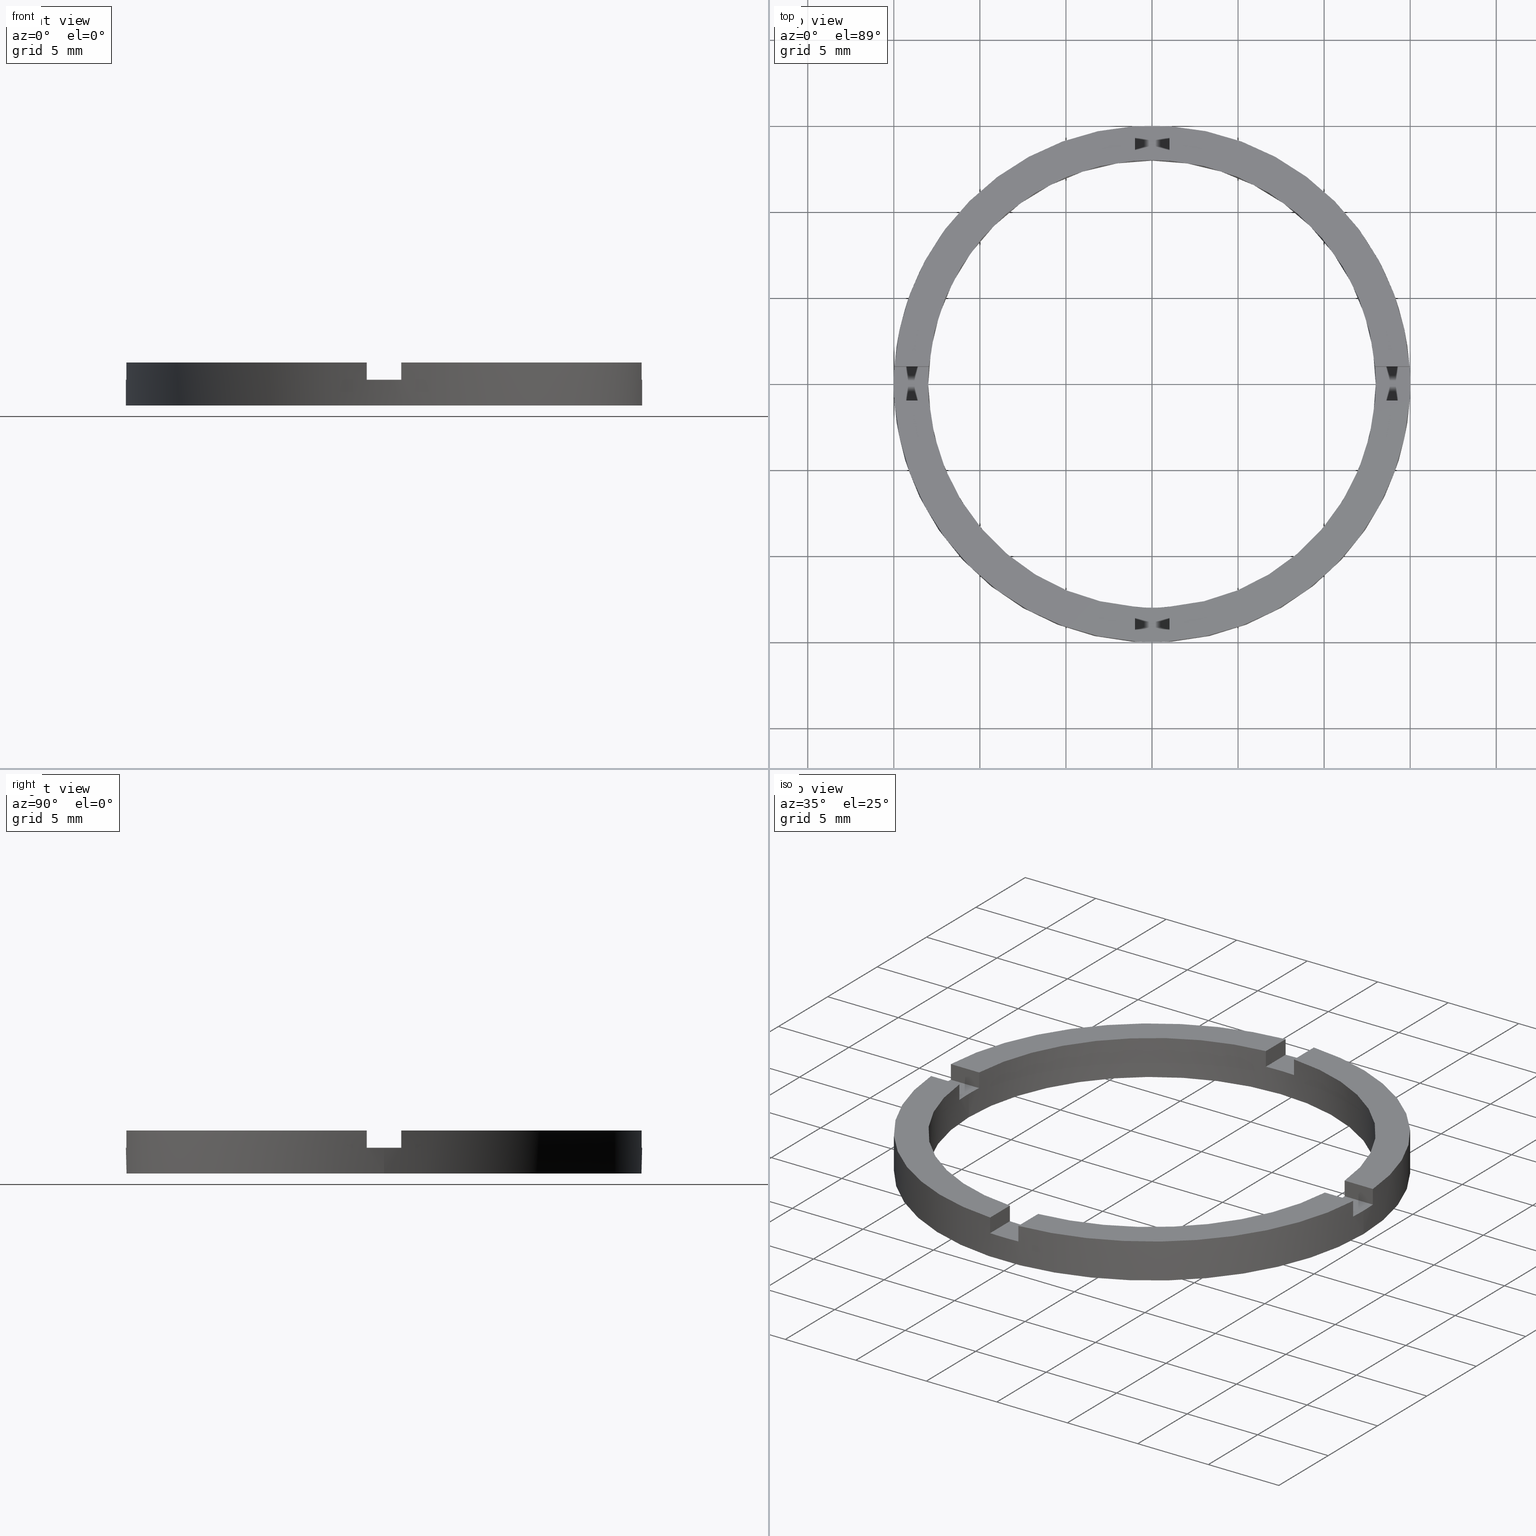
[diagram: canonical four-view strip — front | top / right | iso, engineering-drawing reading convention]
A machine part, canonical four-view strip (front | top / right | iso — engineering-drawing reading convention). The complete STEP part file that produces these views, byte-faithful:
ISO-10303-21;
HEADER;
FILE_DESCRIPTION (( 'STEP AP203' ),
    '1' );
FILE_NAME ('514067.step',
    '2024-12-26T02:34:25',
    ( 'MSI' ),
    ( '' ),
    'SwSTEP 2.0',
    'SolidWorks 2020',
    '' );
FILE_SCHEMA (( 'CONFIG_CONTROL_DESIGN' ));
ENDSEC;

DATA;
#1 = CARTESIAN_POINT ( 'NONE',  ( 0.000000000000000000, 0.000000000000000000, 2.500000000000000000 ) ) ;
#2 = VECTOR ( 'NONE', #232, 1000.000000000000000 ) ;
#3 = APPROVAL ( #459, 'δָ��' ) ;
#4 = EDGE_CURVE ( 'NONE', #371, #401, #487, .T. ) ;
#5 = APPROVAL_ROLE ( '' ) ;
#6 = EDGE_CURVE ( 'NONE', #620, #517, #241, .T. ) ;
#7 = CIRCLE ( 'NONE', #59, 13.00000000000000178 ) ;
#8 = CIRCLE ( 'NONE', #581, 15.00000000000000000 ) ;
#9 = DIRECTION ( 'NONE',  ( 1.000000000000000000, 0.000000000000000000, 0.000000000000000000 ) ) ;
#10 = DIRECTION ( 'NONE',  ( 0.000000000000000000, 0.000000000000000000, 1.000000000000000000 ) ) ;
#11 = ADVANCED_FACE ( 'NONE', ( #737 ), #751, .F. ) ;
#12 = EDGE_CURVE ( 'NONE', #454, #140, #8, .T. ) ;
#13 = FACE_OUTER_BOUND ( 'NONE', #360, .T. ) ;
#14 = LINE ( 'NONE', #101, #17 ) ;
#15 = CARTESIAN_POINT ( 'NONE',  ( 0.000000000000000000, 0.000000000000000000, 0.000000000000000000 ) ) ;
#16 = CARTESIAN_POINT ( 'NONE',  ( -14.96662954709576354, -1.000000000000023093, 1.500000000000000000 ) ) ;
#17 = VECTOR ( 'NONE', #195, 1000.000000000000000 ) ;
#18 = CARTESIAN_POINT ( 'NONE',  ( -12.96148139681571898, -1.000000000000022649, 2.500000000000000000 ) ) ;
#19 = PERSON_AND_ORGANIZATION_ROLE ( 'creator' ) ;
#20 = FACE_OUTER_BOUND ( 'NONE', #750, .T. ) ;
#21 = PLANE ( 'NONE',  #226 ) ;
#22 = CARTESIAN_POINT ( 'NONE',  ( 0.000000000000000000, 0.000000000000000000, 1.500000000000000000 ) ) ;
#23 = EDGE_CURVE ( 'NONE', #80, #675, #542, .T. ) ;
#24 = DIRECTION ( 'NONE',  ( 0.000000000000000000, 1.000000000000000000, 0.000000000000000000 ) ) ;
#25 = CARTESIAN_POINT ( 'NONE',  ( 0.000000000000000000, 0.000000000000000000, 1.500000000000000000 ) ) ;
#26 = CARTESIAN_POINT ( 'NONE',  ( -12.96148139681572253, 0.9999999999999774625, 2.500000000000000000 ) ) ;
#27 = DIRECTION ( 'NONE',  ( 1.000000000000000000, 0.000000000000000000, -0.000000000000000000 ) ) ;
#28 = DIRECTION ( 'NONE',  ( 1.000000000000000000, 0.000000000000000000, 0.000000000000000000 ) ) ;
#29 = CARTESIAN_POINT ( 'NONE',  ( -5.000000000000184741, -1.000000000000021316, 1.500000000000000000 ) ) ;
#30 = DIRECTION ( 'NONE',  ( 1.000000000000000000, 0.000000000000000000, 0.000000000000000000 ) ) ;
#31 = EDGE_CURVE ( 'NONE', #143, #503, #14, .T. ) ;
#32 = CARTESIAN_POINT ( 'NONE',  ( 0.000000000000000000, 0.000000000000000000, 1.500000000000000000 ) ) ;
#33 = CARTESIAN_POINT ( 'NONE',  ( -1.000000000000162981, -14.96662954709575466, 2.500000000000000000 ) ) ;
#34 = CC_DESIGN_DATE_AND_TIME_ASSIGNMENT ( #285, #258, ( #316 ) ) ;
#35 = EDGE_CURVE ( 'NONE', #427, #346, #7, .T. ) ;
#36 = CARTESIAN_POINT ( 'NONE',  ( -1.000000000000024869, 14.96662954709576354, 1.500000000000000000 ) ) ;
#37 = DIRECTION ( 'NONE',  ( 1.000000000000000000, 0.000000000000000000, 0.000000000000000000 ) ) ;
#38 = CARTESIAN_POINT ( 'NONE',  ( 0.000000000000000000, 0.000000000000000000, 2.500000000000000000 ) ) ;
#39 = PERSON_AND_ORGANIZATION ( #479, #654 ) ;
#40 = AXIS2_PLACEMENT_3D ( 'NONE', #75, #601, #269 ) ;
#41 = DATE_AND_TIME ( #564, #272 ) ;
#42 = CALENDAR_DATE ( 2024, 26, 12 ) ;
#43 = DIRECTION ( 'NONE',  ( 0.000000000000000000, 0.000000000000000000, 1.000000000000000000 ) ) ;
#44 = PRODUCT ( '514067', '514067', '', ( #225 ) ) ;
#45 = DIRECTION ( 'NONE',  ( -0.000000000000000000, -0.000000000000000000, -1.000000000000000000 ) ) ;
#46 = PERSON_AND_ORGANIZATION ( #479, #654 ) ;
#47 = LOCAL_TIME ( 10, 34, 25.00000000000000000, #579 ) ;
#48 = APPROVAL_DATE_TIME ( #575, #569 ) ;
#49 = DATE_AND_TIME ( #290, #295 ) ;
#50 = CARTESIAN_POINT ( 'NONE',  ( 0.000000000000000000, 0.000000000000000000, 1.500000000000000000 ) ) ;
#51 = ADVANCED_FACE ( 'NONE', ( #265 ), #278, .F. ) ;
#52 = CARTESIAN_POINT ( 'NONE',  ( -1.000000000000024869, 4.999999999999999112, 2.500000000000000000 ) ) ;
#53 = CARTESIAN_POINT ( 'NONE',  ( -12.96148139681572253, 0.9999999999999774625, 1.500000000000000000 ) ) ;
#54 = CARTESIAN_POINT ( 'NONE',  ( -14.96662954709576709, 0.9999999999999770184, 2.500000000000000000 ) ) ;
#55 = ADVANCED_FACE ( 'NONE', ( #13 ), #540, .F. ) ;
#56 = CARTESIAN_POINT ( 'NONE',  ( 0.000000000000000000, 0.000000000000000000, 1.500000000000000000 ) ) ;
#57 = DIRECTION ( 'NONE',  ( 1.000000000000000000, 0.000000000000000000, -0.000000000000000000 ) ) ;
#58 = CARTESIAN_POINT ( 'NONE',  ( -12.96148139681572253, 0.9999999999999774625, 2.500000000000000000 ) ) ;
#59 = AXIS2_PLACEMENT_3D ( 'NONE', #339, #284, #329 ) ;
#60 = CARTESIAN_POINT ( 'NONE',  ( 14.96662954709577775, 0.9999999999998406830, 1.500000000000000000 ) ) ;
#61 = APPROVAL_STATUS ( 'not_yet_approved' ) ;
#62 = ADVANCED_FACE ( 'NONE', ( #20 ), #635, .T. ) ;
#63 = DIRECTION ( 'NONE',  ( 0.000000000000000000, 0.000000000000000000, 1.000000000000000000 ) ) ;
#64 = AXIS2_PLACEMENT_3D ( 'NONE', #22, #493, #559 ) ;
#65 = PLANE ( 'NONE',  #631 ) ;
#66 = EDGE_CURVE ( 'NONE', #374, #244, #266, .T. ) ;
#67 = DIRECTION ( 'NONE',  ( -1.000000000000000000, -1.734723475976807094E-16, 0.000000000000000000 ) ) ;
#68 =( NAMED_UNIT ( * ) PLANE_ANGLE_UNIT ( ) SI_UNIT ( $, .RADIAN. ) );
#69 = DIRECTION ( 'NONE',  ( -0.000000000000000000, -0.000000000000000000, -1.000000000000000000 ) ) ;
#70 = DIRECTION ( 'NONE',  ( 1.000000000000000000, 1.734723475976807094E-16, 0.000000000000000000 ) ) ;
#71 = APPLICATION_CONTEXT ( 'configuration controlled 3d designs of mechanical parts and assemblies' ) ;
#72 = EDGE_CURVE ( 'NONE', #448, #346, #261, .T. ) ;
#73 = CARTESIAN_POINT ( 'NONE',  ( 0.000000000000000000, 0.000000000000000000, 1.500000000000000000 ) ) ;
#74 = EDGE_CURVE ( 'NONE', #351, #156, #695, .T. ) ;
#75 = CARTESIAN_POINT ( 'NONE',  ( 0.000000000000000000, 0.000000000000000000, 2.500000000000000000 ) ) ;
#76 = DIRECTION ( 'NONE',  ( -0.000000000000000000, 0.000000000000000000, 1.000000000000000000 ) ) ;
#77 = CARTESIAN_POINT ( 'NONE',  ( -1.000000000000162981, -14.96662954709575466, 2.500000000000000000 ) ) ;
#78 = CLOSED_SHELL ( 'NONE', ( #557, #747, #428, #200, #251, #205, #653, #592, #443, #336, #299, #600, #668, #55, #355, #516, #245, #521, #51, #11, #62 ) ) ;
#79 = DIRECTION ( 'NONE',  ( 0.000000000000000000, 0.000000000000000000, 1.000000000000000000 ) ) ;
#80 = VERTEX_POINT ( 'NONE', #781 ) ;
#81 = CC_DESIGN_DATE_AND_TIME_ASSIGNMENT ( #49, #305, ( #756 ) ) ;
#82 = EDGE_CURVE ( 'NONE', #765, #432, #386, .T. ) ;
#83 = ORIENTED_EDGE ( 'NONE', *, *, #286, .F. ) ;
#84 = EDGE_CURVE ( 'NONE', #94, #507, #414, .T. ) ;
#85 = ORIENTED_EDGE ( 'NONE', *, *, #608, .F. ) ;
#86 = ORIENTED_EDGE ( 'NONE', *, *, #541, .T. ) ;
#87 = DIRECTION ( 'NONE',  ( -1.000000000000000000, 0.000000000000000000, 0.000000000000000000 ) ) ;
#88 = DIRECTION ( 'NONE',  ( -0.000000000000000000, -0.000000000000000000, -1.000000000000000000 ) ) ;
#89 = EDGE_LOOP ( 'NONE', ( #238, #768, #605, #338, #518, #672 ) ) ;
#90 = ORIENTED_EDGE ( 'NONE', *, *, #194, .F. ) ;
#91 = ORIENTED_EDGE ( 'NONE', *, *, #31, .T. ) ;
#92 = AXIS2_PLACEMENT_3D ( 'NONE', #452, #524, #247 ) ;
#93 = PERSON_AND_ORGANIZATION_ROLE ( 'design_owner' ) ;
#94 = VERTEX_POINT ( 'NONE', #774 ) ;
#95 = DIRECTION ( 'NONE',  ( -1.000000000000000000, 0.000000000000000000, 0.000000000000000000 ) ) ;
#96 = VECTOR ( 'NONE', #746, 1000.000000000000000 ) ;
#97 = ORIENTED_EDGE ( 'NONE', *, *, #6, .T. ) ;
#98 = ORIENTED_EDGE ( 'NONE', *, *, #31, .F. ) ;
#99 = AXIS2_PLACEMENT_3D ( 'NONE', #550, #648, #287 ) ;
#100 = VERTEX_POINT ( 'NONE', #33 ) ;
#101 = CARTESIAN_POINT ( 'NONE',  ( 4.999999999999993783, -1.000000000000159872, 2.500000000000000000 ) ) ;
#102 = ORIENTED_EDGE ( 'NONE', *, *, #191, .F. ) ;
#103 = ORIENTED_EDGE ( 'NONE', *, *, #570, .F. ) ;
#104 = ORIENTED_EDGE ( 'NONE', *, *, #632, .F. ) ;
#105 = EDGE_CURVE ( 'NONE', #627, #244, #132, .T. ) ;
#106 = EDGE_LOOP ( 'NONE', ( #703, #164 ) ) ;
#107 = UNCERTAINTY_MEASURE_WITH_UNIT (LENGTH_MEASURE( 1.000000000000000082E-05 ), #701, 'distance_accuracy_value', 'NONE');
#108 = DIRECTION ( 'NONE',  ( -0.000000000000000000, -1.000000000000000000, -0.000000000000000000 ) ) ;
#109 = DIRECTION ( 'NONE',  ( -1.000000000000000000, -4.336808689942017736E-17, 0.000000000000000000 ) ) ;
#110 = ORIENTED_EDGE ( 'NONE', *, *, #276, .T. ) ;
#111 = CARTESIAN_POINT ( 'NONE',  ( 0.9999999999999751310, 14.96662954709576709, 1.500000000000000000 ) ) ;
#112 = DIRECTION ( 'NONE',  ( -0.000000000000000000, -0.000000000000000000, -1.000000000000000000 ) ) ;
#113 = VERTEX_POINT ( 'NONE', #704 ) ;
#114 = ORIENTED_EDGE ( 'NONE', *, *, #423, .T. ) ;
#115 = FACE_OUTER_BOUND ( 'NONE', #696, .T. ) ;
#116 = VECTOR ( 'NONE', #311, 1000.000000000000000 ) ;
#117 = EDGE_CURVE ( 'NONE', #371, #690, #391, .T. ) ;
#118 = VECTOR ( 'NONE', #603, 1000.000000000000000 ) ;
#119 = DIRECTION ( 'NONE',  ( 1.000000000000000000, 0.000000000000000000, -0.000000000000000000 ) ) ;
#120 = CARTESIAN_POINT ( 'NONE',  ( 0.9999999999998366862, -12.96148139681573497, 2.500000000000000000 ) ) ;
#121 = AXIS2_PLACEMENT_3D ( 'NONE', #596, #552, #199 ) ;
#122 = LINE ( 'NONE', #545, #649 ) ;
#123 = FACE_OUTER_BOUND ( 'NONE', #136, .T. ) ;
#124 = CARTESIAN_POINT ( 'NONE',  ( -14.96662954709576709, 0.9999999999999770184, 1.500000000000000000 ) ) ;
#125 = CC_DESIGN_APPROVAL ( #3, ( #527 ) ) ;
#126 = EDGE_CURVE ( 'NONE', #627, #186, #135, .T. ) ;
#127 = CARTESIAN_POINT ( 'NONE',  ( 15.00000000000000000, 1.836970198721029589E-15, 1.500000000000000000 ) ) ;
#128 = EDGE_CURVE ( 'NONE', #80, #331, #671, .T. ) ;
#129 = APPROVAL_STATUS ( 'not_yet_approved' ) ;
#130 = CYLINDRICAL_SURFACE ( 'NONE', #577, 15.00000000000000000 ) ;
#131 = LINE ( 'NONE', #367, #118 ) ;
#132 = CIRCLE ( 'NONE', #40, 15.00000000000000000 ) ;
#133 = ORIENTED_EDGE ( 'NONE', *, *, #191, .T. ) ;
#134 = CALENDAR_DATE ( 2024, 26, 12 ) ;
#135 = LINE ( 'NONE', #686, #680 ) ;
#136 = EDGE_LOOP ( 'NONE', ( #757, #138, #664, #502 ) ) ;
#137 = CIRCLE ( 'NONE', #484, 13.00000000000000178 ) ;
#138 = ORIENTED_EDGE ( 'NONE', *, *, #602, .T. ) ;
#139 = LOCAL_TIME ( 10, 34, 25.00000000000000000, #398 ) ;
#140 = VERTEX_POINT ( 'NONE', #127 ) ;
#141 = PLANE ( 'NONE',  #624 ) ;
#142 = APPLICATION_PROTOCOL_DEFINITION ( 'international standard', 'config_control_design', 1994, #71 ) ;
#143 = VERTEX_POINT ( 'NONE', #216 ) ;
#144 = AXIS2_PLACEMENT_3D ( 'NONE', #196, #745, #303 ) ;
#145 = LOCAL_TIME ( 10, 34, 25.00000000000000000, #394 ) ;
#146 = ORIENTED_EDGE ( 'NONE', *, *, #504, .F. ) ;
#147 = LINE ( 'NONE', #18, #396 ) ;
#148 = ORIENTED_EDGE ( 'NONE', *, *, #248, .F. ) ;
#149 = VECTOR ( 'NONE', #45, 1000.000000000000000 ) ;
#150 = EDGE_LOOP ( 'NONE', ( #353, #219, #613, #426 ) ) ;
#151 = ORIENTED_EDGE ( 'NONE', *, *, #563, .T. ) ;
#152 = VECTOR ( 'NONE', #218, 1000.000000000000000 ) ;
#153 = VECTOR ( 'NONE', #741, 1000.000000000000000 ) ;
#154 = VECTOR ( 'NONE', #533, 1000.000000000000000 ) ;
#155 = ORIENTED_EDGE ( 'NONE', *, *, #220, .F. ) ;
#156 = VERTEX_POINT ( 'NONE', #317 ) ;
#157 = DIRECTION ( 'NONE',  ( 0.000000000000000000, 0.000000000000000000, 1.000000000000000000 ) ) ;
#158 = FACE_OUTER_BOUND ( 'NONE', #742, .T. ) ;
#159 = ORIENTED_EDGE ( 'NONE', *, *, #644, .T. ) ;
#160 = ORIENTED_EDGE ( 'NONE', *, *, #423, .F. ) ;
#161 = DIRECTION ( 'NONE',  ( 1.000000000000000000, 0.000000000000000000, -0.000000000000000000 ) ) ;
#162 = FACE_OUTER_BOUND ( 'NONE', #716, .T. ) ;
#163 = VERTEX_POINT ( 'NONE', #480 ) ;
#164 = ORIENTED_EDGE ( 'NONE', *, *, #74, .F. ) ;
#165 = VECTOR ( 'NONE', #586, 1000.000000000000000 ) ;
#166 = ORIENTED_EDGE ( 'NONE', *, *, #4, .T. ) ;
#167 = LINE ( 'NONE', #291, #435 ) ;
#168 = FACE_OUTER_BOUND ( 'NONE', #150, .T. ) ;
#169 = ORIENTED_EDGE ( 'NONE', *, *, #23, .F. ) ;
#170 = FACE_OUTER_BOUND ( 'NONE', #368, .T. ) ;
#171 = ORIENTED_EDGE ( 'NONE', *, *, #84, .F. ) ;
#172 = DIRECTION ( 'NONE',  ( 1.000000000000000000, 1.734723475976807094E-16, -0.000000000000000000 ) ) ;
#173 = EDGE_CURVE ( 'NONE', #113, #636, #147, .T. ) ;
#174 = ORIENTED_EDGE ( 'NONE', *, *, #651, .T. ) ;
#175 = CIRCLE ( 'NONE', #597, 15.00000000000000000 ) ;
#176 = EDGE_LOOP ( 'NONE', ( #169, #639, #655, #155 ) ) ;
#177 = ORIENTED_EDGE ( 'NONE', *, *, #173, .F. ) ;
#178 = AXIS2_PLACEMENT_3D ( 'NONE', #387, #76, #279 ) ;
#179 = FACE_OUTER_BOUND ( 'NONE', #513, .T. ) ;
#180 = ORIENTED_EDGE ( 'NONE', *, *, #105, .F. ) ;
#181 = ORIENTED_EDGE ( 'NONE', *, *, #464, .T. ) ;
#182 = VECTOR ( 'NONE', #88, 1000.000000000000000 ) ;
#183 = ORIENTED_EDGE ( 'NONE', *, *, #286, .T. ) ;
#184 = CIRCLE ( 'NONE', #92, 13.00000000000000178 ) ;
#185 = FACE_OUTER_BOUND ( 'NONE', #335, .T. ) ;
#186 = VERTEX_POINT ( 'NONE', #60 ) ;
#187 = AXIS2_PLACEMENT_3D ( 'NONE', #350, #292, #87 ) ;
#188 = FACE_OUTER_BOUND ( 'NONE', #223, .T. ) ;
#189 = CIRCLE ( 'NONE', #312, 13.00000000000000178 ) ;
#190 = CARTESIAN_POINT ( 'NONE',  ( 0.9999999999998369082, -14.96662954709577775, 1.500000000000000000 ) ) ;
#191 = EDGE_CURVE ( 'NONE', #675, #401, #410, .T. ) ;
#192 = CIRCLE ( 'NONE', #64, 13.00000000000000178 ) ;
#193 = LINE ( 'NONE', #483, #468 ) ;
#194 = EDGE_CURVE ( 'NONE', #389, #610, #684, .T. ) ;
#195 = DIRECTION ( 'NONE',  ( 1.000000000000000000, 4.336808689942017736E-17, 0.000000000000000000 ) ) ;
#196 = CARTESIAN_POINT ( 'NONE',  ( 0.000000000000000000, 0.000000000000000000, 2.500000000000000000 ) ) ;
#197 = DIRECTION ( 'NONE',  ( 1.000000000000000000, 1.734723475976807094E-16, -0.000000000000000000 ) ) ;
#198 = VECTOR ( 'NONE', #235, 1000.000000000000000 ) ;
#199 = DIRECTION ( 'NONE',  ( 1.000000000000000000, 0.000000000000000000, 0.000000000000000000 ) ) ;
#200 = ADVANCED_FACE ( 'NONE', ( #158 ), #560, .T. ) ;
#201 = LINE ( 'NONE', #568, #461 ) ;
#202 = CYLINDRICAL_SURFACE ( 'NONE', #187, 15.00000000000000000 ) ;
#203 = DIRECTION ( 'NONE',  ( 0.000000000000000000, 0.000000000000000000, 1.000000000000000000 ) ) ;
#204 = APPLICATION_CONTEXT ( 'configuration controlled 3d designs of mechanical parts and assemblies' ) ;
#205 = ADVANCED_FACE ( 'NONE', ( #425 ), #528, .T. ) ;
#206 = VECTOR ( 'NONE', #69, 1000.000000000000000 ) ;
#207 = CARTESIAN_POINT ( 'NONE',  ( 4.999999999999993783, 0.9999999999998402389, 2.500000000000000000 ) ) ;
#208 = CARTESIAN_POINT ( 'NONE',  ( -1.000000000000164313, -5.000000000000179412, 2.500000000000000000 ) ) ;
#209 = FACE_OUTER_BOUND ( 'NONE', #176, .T. ) ;
#210 = VECTOR ( 'NONE', #294, 1000.000000000000000 ) ;
#211 = SECURITY_CLASSIFICATION_LEVEL ( 'unclassified' ) ;
#212 = EDGE_CURVE ( 'NONE', #94, #156, #692, .T. ) ;
#213 = VECTOR ( 'NONE', #112, 1000.000000000000000 ) ;
#214 = DIRECTION ( 'NONE',  ( -1.000000000000000000, -4.336808689942017736E-17, -0.000000000000000000 ) ) ;
#215 = CIRCLE ( 'NONE', #121, 15.00000000000000000 ) ;
#216 = CARTESIAN_POINT ( 'NONE',  ( 12.96148139681570832, -1.000000000000159428, 2.500000000000000000 ) ) ;
#217 = DIRECTION ( 'NONE',  ( -0.000000000000000000, -0.000000000000000000, -1.000000000000000000 ) ) ;
#218 = DIRECTION ( 'NONE',  ( 0.000000000000000000, 0.000000000000000000, 1.000000000000000000 ) ) ;
#219 = ORIENTED_EDGE ( 'NONE', *, *, #498, .T. ) ;
#220 = EDGE_CURVE ( 'NONE', #675, #748, #189, .T. ) ;
#221 = DIRECTION ( 'NONE',  ( -0.000000000000000000, -0.000000000000000000, -1.000000000000000000 ) ) ;
#222 = ORIENTED_EDGE ( 'NONE', *, *, #602, .F. ) ;
#223 = EDGE_LOOP ( 'NONE', ( #708, #446, #660, #712, #151, #177, #417, #90, #437, #222, #174, #148 ) ) ;
#224 = ORIENTED_EDGE ( 'NONE', *, *, #35, .T. ) ;
#225 = MECHANICAL_CONTEXT ( 'NONE', #71, 'mechanical' ) ;
#226 = AXIS2_PLACEMENT_3D ( 'NONE', #376, #598, #67 ) ;
#227 = ORIENTED_EDGE ( 'NONE', *, *, #117, .T. ) ;
#228 =( GEOMETRIC_REPRESENTATION_CONTEXT ( 3 ) GLOBAL_UNCERTAINTY_ASSIGNED_CONTEXT ( ( #107 ) ) GLOBAL_UNIT_ASSIGNED_CONTEXT ( ( #701, #68, #617 ) ) REPRESENTATION_CONTEXT ( 'NONE', 'WORKASPACE' ) );
#229 = ORIENTED_EDGE ( 'NONE', *, *, #584, .F. ) ;
#230 = DIRECTION ( 'NONE',  ( 4.336808689942017736E-17, -1.000000000000000000, 0.000000000000000000 ) ) ;
#231 = ORIENTED_EDGE ( 'NONE', *, *, #485, .T. ) ;
#232 = DIRECTION ( 'NONE',  ( 0.000000000000000000, 1.000000000000000000, 0.000000000000000000 ) ) ;
#233 = ORIENTED_EDGE ( 'NONE', *, *, #308, .F. ) ;
#234 = ORIENTED_EDGE ( 'NONE', *, *, #212, .F. ) ;
#235 = DIRECTION ( 'NONE',  ( 1.000000000000000000, 4.336808689942017736E-17, 0.000000000000000000 ) ) ;
#236 = ORIENTED_EDGE ( 'NONE', *, *, #72, .F. ) ;
#237 = CARTESIAN_POINT ( 'NONE',  ( 4.999999999999993783, -1.000000000000159872, 1.500000000000000000 ) ) ;
#238 = ORIENTED_EDGE ( 'NONE', *, *, #12, .T. ) ;
#239 = ORIENTED_EDGE ( 'NONE', *, *, #325, .T. ) ;
#240 = ORIENTED_EDGE ( 'NONE', *, *, #270, .T. ) ;
#241 = CIRCLE ( 'NONE', #319, 15.00000000000000000 ) ;
#242 = ORIENTED_EDGE ( 'NONE', *, *, #309, .F. ) ;
#243 = DIRECTION ( 'NONE',  ( -0.000000000000000000, -0.000000000000000000, -1.000000000000000000 ) ) ;
#244 = VERTEX_POINT ( 'NONE', #634 ) ;
#245 = ADVANCED_FACE ( 'NONE', ( #179 ), #773, .F. ) ;
#246 = CC_DESIGN_PERSON_AND_ORGANIZATION_ASSIGNMENT ( #551, #289, ( #527 ) ) ;
#247 = DIRECTION ( 'NONE',  ( 1.000000000000000000, 0.000000000000000000, 0.000000000000000000 ) ) ;
#248 = EDGE_CURVE ( 'NONE', #163, #143, #707, .T. ) ;
#249 = CARTESIAN_POINT ( 'NONE',  ( 0.000000000000000000, 0.000000000000000000, 1.500000000000000000 ) ) ;
#250 = EDGE_CURVE ( 'NONE', #640, #94, #723, .T. ) ;
#251 = ADVANCED_FACE ( 'NONE', ( #185 ), #388, .T. ) ;
#252 = PLANE ( 'NONE',  #588 ) ;
#253 = CARTESIAN_POINT ( 'NONE',  ( 0.000000000000000000, 0.000000000000000000, 1.500000000000000000 ) ) ;
#254 = DIRECTION ( 'NONE',  ( 1.000000000000000000, 0.000000000000000000, 0.000000000000000000 ) ) ;
#255 = PLANE ( 'NONE',  #293 ) ;
#256 = DIRECTION ( 'NONE',  ( 0.000000000000000000, 0.000000000000000000, 1.000000000000000000 ) ) ;
#257 = DIRECTION ( 'NONE',  ( 0.000000000000000000, 0.000000000000000000, 1.000000000000000000 ) ) ;
#258 = DATE_TIME_ROLE ( 'creation_date' ) ;
#259 = AXIS2_PLACEMENT_3D ( 'NONE', #281, #384, #412 ) ;
#260 = CARTESIAN_POINT ( 'NONE',  ( 13.00000000000000178, 1.592040838891559293E-15, 2.500000000000000000 ) ) ;
#261 = LINE ( 'NONE', #779, #149 ) ;
#262 = CARTESIAN_POINT ( 'NONE',  ( 0.000000000000000000, 0.000000000000000000, 1.500000000000000000 ) ) ;
#263 = VECTOR ( 'NONE', #108, 1000.000000000000000 ) ;
#264 = CARTESIAN_POINT ( 'NONE',  ( 0.000000000000000000, 0.000000000000000000, 2.500000000000000000 ) ) ;
#265 = FACE_OUTER_BOUND ( 'NONE', #744, .T. ) ;
#266 = LINE ( 'NONE', #583, #2 ) ;
#267 = CARTESIAN_POINT ( 'NONE',  ( 0.000000000000000000, 0.000000000000000000, 1.500000000000000000 ) ) ;
#268 = CARTESIAN_POINT ( 'NONE',  ( -13.00000000000000178, 0.000000000000000000, 0.000000000000000000 ) ) ;
#269 = DIRECTION ( 'NONE',  ( 1.000000000000000000, 0.000000000000000000, 0.000000000000000000 ) ) ;
#270 = EDGE_CURVE ( 'NONE', #517, #506, #718, .T. ) ;
#271 = PRODUCT_RELATED_PRODUCT_CATEGORY ( 'detail', '', ( #44 ) ) ;
#272 = LOCAL_TIME ( 10, 34, 25.00000000000000000, #548 ) ;
#273 = DIRECTION ( 'NONE',  ( 0.000000000000000000, 0.000000000000000000, 1.000000000000000000 ) ) ;
#274 = APPROVAL_DATE_TIME ( #41, #3 ) ;
#275 = CC_DESIGN_PERSON_AND_ORGANIZATION_ASSIGNMENT ( #300, #607, ( #527 ) ) ;
#276 = EDGE_CURVE ( 'NONE', #620, #100, #447, .T. ) ;
#277 = DIRECTION ( 'NONE',  ( 1.000000000000000000, 4.336808689942017736E-17, 0.000000000000000000 ) ) ;
#278 = PLANE ( 'NONE',  #259 ) ;
#279 = DIRECTION ( 'NONE',  ( 1.000000000000000000, 0.000000000000000000, 0.000000000000000000 ) ) ;
#280 = AXIS2_PLACEMENT_3D ( 'NONE', #237, #230, #277 ) ;
#281 = CARTESIAN_POINT ( 'NONE',  ( -1.000000000000024869, 4.999999999999999112, 1.500000000000000000 ) ) ;
#282 = DIRECTION ( 'NONE',  ( -0.000000000000000000, -0.000000000000000000, -1.000000000000000000 ) ) ;
#283 = AXIS2_PLACEMENT_3D ( 'NONE', #327, #63, #431 ) ;
#284 = DIRECTION ( 'NONE',  ( 0.000000000000000000, 0.000000000000000000, 1.000000000000000000 ) ) ;
#285 = DATE_AND_TIME ( #562, #139 ) ;
#286 = EDGE_CURVE ( 'NONE', #690, #244, #193, .T. ) ;
#287 = DIRECTION ( 'NONE',  ( 0.000000000000000000, 0.000000000000000000, -1.000000000000000000 ) ) ;
#288 = PLANE ( 'NONE',  #783 ) ;
#289 = PERSON_AND_ORGANIZATION_ROLE ( 'creator' ) ;
#290 = CALENDAR_DATE ( 2024, 26, 12 ) ;
#291 = CARTESIAN_POINT ( 'NONE',  ( -1.000000000000024869, 4.999999999999999112, 1.500000000000000000 ) ) ;
#292 = DIRECTION ( 'NONE',  ( -0.000000000000000000, -0.000000000000000000, -1.000000000000000000 ) ) ;
#293 = AXIS2_PLACEMENT_3D ( 'NONE', #29, #558, #70 ) ;
#294 = DIRECTION ( 'NONE',  ( 0.000000000000000000, 0.000000000000000000, 1.000000000000000000 ) ) ;
#295 = LOCAL_TIME ( 10, 34, 25.00000000000000000, #296 ) ;
#296 = COORDINATED_UNIVERSAL_TIME_OFFSET ( 8, 0, .AHEAD. ) ;
#297 = DIRECTION ( 'NONE',  ( 0.000000000000000000, 0.000000000000000000, 1.000000000000000000 ) ) ;
#298 = EDGE_CURVE ( 'NONE', #163, #454, #460, .T. ) ;
#299 = ADVANCED_FACE ( 'NONE', ( #168 ), #21, .F. ) ;
#300 = PERSON_AND_ORGANIZATION ( #479, #654 ) ;
#301 = PERSON_AND_ORGANIZATION ( #479, #654 ) ;
#302 = AXIS2_PLACEMENT_3D ( 'NONE', #249, #344, #514 ) ;
#303 = DIRECTION ( 'NONE',  ( -1.000000000000000000, 0.000000000000000000, 0.000000000000000000 ) ) ;
#304 = DIRECTION ( 'NONE',  ( 1.000000000000000000, 0.000000000000000000, 0.000000000000000000 ) ) ;
#305 = DATE_TIME_ROLE ( 'classification_date' ) ;
#306 = CARTESIAN_POINT ( 'NONE',  ( 0.000000000000000000, 0.000000000000000000, 1.500000000000000000 ) ) ;
#307 = AXIS2_PLACEMENT_3D ( 'NONE', #760, #512, #595 ) ;
#308 = EDGE_CURVE ( 'NONE', #427, #432, #466, .T. ) ;
#309 = EDGE_CURVE ( 'NONE', #627, #448, #720, .T. ) ;
#310 = DIRECTION ( 'NONE',  ( -0.000000000000000000, 0.000000000000000000, 1.000000000000000000 ) ) ;
#311 = DIRECTION ( 'NONE',  ( -0.000000000000000000, -0.000000000000000000, -1.000000000000000000 ) ) ;
#312 = AXIS2_PLACEMENT_3D ( 'NONE', #38, #79, #539 ) ;
#313 = SHAPE_DEFINITION_REPRESENTATION ( #526, #455 ) ;
#314 = DIRECTION ( 'NONE',  ( -1.000000000000000000, -4.336808689942017736E-17, -0.000000000000000000 ) ) ;
#315 = DESIGN_CONTEXT ( 'detailed design', #204, 'design' ) ;
#316 = PRODUCT_DEFINITION ( 'δ֪', '', #527, #315 ) ;
#317 = CARTESIAN_POINT ( 'NONE',  ( -15.00000000000000000, 0.000000000000000000, 0.000000000000000000 ) ) ;
#318 = CARTESIAN_POINT ( 'NONE',  ( 0.000000000000000000, 0.000000000000000000, 0.000000000000000000 ) ) ;
#319 = AXIS2_PLACEMENT_3D ( 'NONE', #25, #522, #254 ) ;
#320 = DIRECTION ( 'NONE',  ( 0.000000000000000000, 0.000000000000000000, 1.000000000000000000 ) ) ;
#321 = DIRECTION ( 'NONE',  ( 0.000000000000000000, 0.000000000000000000, 1.000000000000000000 ) ) ;
#322 = CARTESIAN_POINT ( 'NONE',  ( 12.96148139681570832, -1.000000000000159428, 2.500000000000000000 ) ) ;
#323 = AXIS2_PLACEMENT_3D ( 'NONE', #772, #372, #366 ) ;
#324 = EDGE_CURVE ( 'NONE', #448, #374, #436, .T. ) ;
#325 = EDGE_CURVE ( 'NONE', #348, #503, #699, .T. ) ;
#326 = DIRECTION ( 'NONE',  ( 1.301042606982605321E-16, -1.000000000000000000, 0.000000000000000000 ) ) ;
#327 = CARTESIAN_POINT ( 'NONE',  ( 0.000000000000000000, 0.000000000000000000, 2.500000000000000000 ) ) ;
#328 = CARTESIAN_POINT ( 'NONE',  ( -1.000000000000024869, 14.96662954709576354, 2.500000000000000000 ) ) ;
#329 = DIRECTION ( 'NONE',  ( 1.000000000000000000, 0.000000000000000000, 0.000000000000000000 ) ) ;
#330 = ORIENTED_EDGE ( 'NONE', *, *, #298, .F. ) ;
#331 = VERTEX_POINT ( 'NONE', #358 ) ;
#332 = DIRECTION ( 'NONE',  ( 0.000000000000000000, 0.000000000000000000, 1.000000000000000000 ) ) ;
#333 = ORIENTED_EDGE ( 'NONE', *, *, #775, .T. ) ;
#334 = DIRECTION ( 'NONE',  ( 0.000000000000000000, 0.000000000000000000, 1.000000000000000000 ) ) ;
#335 = EDGE_LOOP ( 'NONE', ( #98, #763, #104, #239 ) ) ;
#336 = ADVANCED_FACE ( 'NONE', ( #170 ), #255, .F. ) ;
#337 = ORIENTED_EDGE ( 'NONE', *, *, #780, .T. ) ;
#338 = ORIENTED_EDGE ( 'NONE', *, *, #35, .F. ) ;
#339 = CARTESIAN_POINT ( 'NONE',  ( 0.000000000000000000, 0.000000000000000000, 1.500000000000000000 ) ) ;
#340 = ORIENTED_EDGE ( 'NONE', *, *, #593, .F. ) ;
#341 = DIRECTION ( 'NONE',  ( 1.000000000000000000, 0.000000000000000000, 0.000000000000000000 ) ) ;
#342 = CARTESIAN_POINT ( 'NONE',  ( -1.000000000000163203, -12.96148139681570832, 2.500000000000000000 ) ) ;
#343 = ORIENTED_EDGE ( 'NONE', *, *, #529, .F. ) ;
#344 = DIRECTION ( 'NONE',  ( 0.000000000000000000, -0.000000000000000000, 1.000000000000000000 ) ) ;
#345 = PERSON_AND_ORGANIZATION_ROLE ( 'classification_officer' ) ;
#346 = VERTEX_POINT ( 'NONE', #381 ) ;
#347 = VERTEX_POINT ( 'NONE', #451 ) ;
#348 = VERTEX_POINT ( 'NONE', #622 ) ;
#349 = CARTESIAN_POINT ( 'NONE',  ( 4.999999999999993783, 0.9999999999998402389, 1.500000000000000000 ) ) ;
#350 = CARTESIAN_POINT ( 'NONE',  ( 0.000000000000000000, 0.000000000000000000, 2.500000000000000000 ) ) ;
#351 = VERTEX_POINT ( 'NONE', #523 ) ;
#352 = DIRECTION ( 'NONE',  ( 0.000000000000000000, 0.000000000000000000, 1.000000000000000000 ) ) ;
#353 = ORIENTED_EDGE ( 'NONE', *, *, #541, .F. ) ;
#354 = ORIENTED_EDGE ( 'NONE', *, *, #775, .F. ) ;
#355 = ADVANCED_FACE ( 'NONE', ( #439 ), #141, .T. ) ;
#356 = FACE_OUTER_BOUND ( 'NONE', #628, .T. ) ;
#357 = ORIENTED_EDGE ( 'NONE', *, *, #276, .F. ) ;
#358 = CARTESIAN_POINT ( 'NONE',  ( -14.96662954709576709, 0.9999999999999770184, 2.500000000000000000 ) ) ;
#359 = CARTESIAN_POINT ( 'NONE',  ( 0.000000000000000000, 0.000000000000000000, 2.500000000000000000 ) ) ;
#360 = EDGE_LOOP ( 'NONE', ( #354, #392, #442, #357 ) ) ;
#361 = DIRECTION ( 'NONE',  ( -0.000000000000000000, -0.000000000000000000, -1.000000000000000000 ) ) ;
#362 = ORIENTED_EDGE ( 'NONE', *, *, #250, .F. ) ;
#363 = DIRECTION ( 'NONE',  ( 1.000000000000000000, 0.000000000000000000, 0.000000000000000000 ) ) ;
#364 = ORIENTED_EDGE ( 'NONE', *, *, #6, .F. ) ;
#365 = ORIENTED_EDGE ( 'NONE', *, *, #638, .T. ) ;
#366 = DIRECTION ( 'NONE',  ( 1.000000000000000000, 0.000000000000000000, 0.000000000000000000 ) ) ;
#367 = CARTESIAN_POINT ( 'NONE',  ( 0.9999999999998356870, -5.000000000000179412, 2.500000000000000000 ) ) ;
#368 = EDGE_LOOP ( 'NONE', ( #419, #687, #438, #615 ) ) ;
#369 = DIRECTION ( 'NONE',  ( 0.000000000000000000, 0.000000000000000000, 1.000000000000000000 ) ) ;
#370 = ORIENTED_EDGE ( 'NONE', *, *, #324, .T. ) ;
#371 = VERTEX_POINT ( 'NONE', #733 ) ;
#372 = DIRECTION ( 'NONE',  ( 0.000000000000000000, 0.000000000000000000, 1.000000000000000000 ) ) ;
#373 = DIRECTION ( 'NONE',  ( 0.000000000000000000, 0.000000000000000000, 1.000000000000000000 ) ) ;
#374 = VERTEX_POINT ( 'NONE', #782 ) ;
#375 = FACE_BOUND ( 'NONE', #450, .T. ) ;
#376 = CARTESIAN_POINT ( 'NONE',  ( -5.000000000000184741, 0.9999999999999787947, 1.500000000000000000 ) ) ;
#377 = CARTESIAN_POINT ( 'NONE',  ( -1.000000000000164313, -5.000000000000179412, 1.500000000000000000 ) ) ;
#378 = VECTOR ( 'NONE', #282, 1000.000000000000000 ) ;
#379 = DIRECTION ( 'NONE',  ( 0.000000000000000000, 0.000000000000000000, 1.000000000000000000 ) ) ;
#380 = APPROVAL ( #129, 'δָ��' ) ;
#381 = CARTESIAN_POINT ( 'NONE',  ( 12.96148139681573497, 0.9999999999998406830, 1.500000000000000000 ) ) ;
#382 = LINE ( 'NONE', #691, #116 ) ;
#383 = CIRCLE ( 'NONE', #444, 13.00000000000000178 ) ;
#384 = DIRECTION ( 'NONE',  ( -1.000000000000000000, 0.000000000000000000, 0.000000000000000000 ) ) ;
#385 = AXIS2_PLACEMENT_3D ( 'NONE', #318, #379, #481 ) ;
#386 = CIRCLE ( 'NONE', #385, 13.00000000000000178 ) ;
#387 = CARTESIAN_POINT ( 'NONE',  ( 0.000000000000000000, 0.000000000000000000, 1.500000000000000000 ) ) ;
#388 = PLANE ( 'NONE',  #434 ) ;
#389 = VERTEX_POINT ( 'NONE', #491 ) ;
#390 = CIRCLE ( 'NONE', #283, 13.00000000000000178 ) ;
#391 = LINE ( 'NONE', #473, #689 ) ;
#392 = ORIENTED_EDGE ( 'NONE', *, *, #194, .T. ) ;
#393 = PLANE ( 'NONE',  #482 ) ;
#394 = COORDINATED_UNIVERSAL_TIME_OFFSET ( 8, 0, .AHEAD. ) ;
#395 = FACE_OUTER_BOUND ( 'NONE', #106, .T. ) ;
#396 = VECTOR ( 'NONE', #361, 1000.000000000000000 ) ;
#397 = ORIENTED_EDGE ( 'NONE', *, *, #72, .T. ) ;
#398 = COORDINATED_UNIVERSAL_TIME_OFFSET ( 8, 0, .AHEAD. ) ;
#399 = ORIENTED_EDGE ( 'NONE', *, *, #475, .T. ) ;
#400 = LINE ( 'NONE', #208, #403 ) ;
#401 = VERTEX_POINT ( 'NONE', #643 ) ;
#402 = VECTOR ( 'NONE', #373, 1000.000000000000000 ) ;
#403 = VECTOR ( 'NONE', #753, 1000.000000000000000 ) ;
#404 = VERTEX_POINT ( 'NONE', #36 ) ;
#405 = CARTESIAN_POINT ( 'NONE',  ( 13.00000000000000178, 1.592040838891559293E-15, 1.500000000000000000 ) ) ;
#406 = LINE ( 'NONE', #471, #152 ) ;
#407 = EDGE_LOOP ( 'NONE', ( #97, #240, #743, #333 ) ) ;
#408 = PERSON_AND_ORGANIZATION ( #479, #654 ) ;
#409 = ORIENTED_EDGE ( 'NONE', *, *, #66, .F. ) ;
#410 = LINE ( 'NONE', #469, #154 ) ;
#411 = ORIENTED_EDGE ( 'NONE', *, *, #220, .T. ) ;
#412 = DIRECTION ( 'NONE',  ( 0.000000000000000000, 0.000000000000000000, 1.000000000000000000 ) ) ;
#413 = LINE ( 'NONE', #377, #665 ) ;
#414 = CIRCLE ( 'NONE', #688, 15.00000000000000000 ) ;
#415 = ORIENTED_EDGE ( 'NONE', *, *, #608, .T. ) ;
#416 = CIRCLE ( 'NONE', #492, 15.00000000000000000 ) ;
#417 = ORIENTED_EDGE ( 'NONE', *, *, #574, .T. ) ;
#418 = VECTOR ( 'NONE', #352, 1000.000000000000000 ) ;
#419 = ORIENTED_EDGE ( 'NONE', *, *, #593, .T. ) ;
#420 = ORIENTED_EDGE ( 'NONE', *, *, #128, .F. ) ;
#421 = ORIENTED_EDGE ( 'NONE', *, *, #758, .T. ) ;
#422 = AXIS2_PLACEMENT_3D ( 'NONE', #262, #10, #57 ) ;
#423 = EDGE_CURVE ( 'NONE', #80, #404, #445, .T. ) ;
#424 = EDGE_CURVE ( 'NONE', #389, #506, #715, .T. ) ;
#425 = FACE_OUTER_BOUND ( 'NONE', #619, .T. ) ;
#426 = ORIENTED_EDGE ( 'NONE', *, *, #464, .F. ) ;
#427 = VERTEX_POINT ( 'NONE', #405 ) ;
#428 = ADVANCED_FACE ( 'NONE', ( #209 ), #393, .T. ) ;
#429 = DIRECTION ( 'NONE',  ( -0.000000000000000000, -1.000000000000000000, -0.000000000000000000 ) ) ;
#430 = VECTOR ( 'NONE', #650, 1000.000000000000000 ) ;
#431 = DIRECTION ( 'NONE',  ( 1.000000000000000000, 0.000000000000000000, 0.000000000000000000 ) ) ;
#432 = VERTEX_POINT ( 'NONE', #486 ) ;
#433 = CARTESIAN_POINT ( 'NONE',  ( 14.96662954709575466, -1.000000000000159428, 2.500000000000000000 ) ) ;
#434 = AXIS2_PLACEMENT_3D ( 'NONE', #721, #580, #717 ) ;
#435 = VECTOR ( 'NONE', #429, 1000.000000000000000 ) ;
#436 = CIRCLE ( 'NONE', #323, 13.00000000000000178 ) ;
#437 = ORIENTED_EDGE ( 'NONE', *, *, #424, .T. ) ;
#438 = ORIENTED_EDGE ( 'NONE', *, *, #591, .F. ) ;
#439 = FACE_OUTER_BOUND ( 'NONE', #407, .T. ) ;
#440 = ORIENTED_EDGE ( 'NONE', *, *, #212, .T. ) ;
#441 = CARTESIAN_POINT ( 'NONE',  ( -1.000000000000162981, -14.96662954709575466, 1.500000000000000000 ) ) ;
#442 = ORIENTED_EDGE ( 'NONE', *, *, #658, .T. ) ;
#443 = ADVANCED_FACE ( 'NONE', ( #732 ), #490, .F. ) ;
#444 = AXIS2_PLACEMENT_3D ( 'NONE', #253, #257, #740 ) ;
#445 = LINE ( 'NONE', #328, #182 ) ;
#446 = ORIENTED_EDGE ( 'NONE', *, *, #308, .T. ) ;
#447 = LINE ( 'NONE', #77, #462 ) ;
#448 = VERTEX_POINT ( 'NONE', #589 ) ;
#449 = DIRECTION ( 'NONE',  ( 0.000000000000000000, -0.000000000000000000, 1.000000000000000000 ) ) ;
#450 = EDGE_LOOP ( 'NONE', ( #761, #623 ) ) ;
#451 = CARTESIAN_POINT ( 'NONE',  ( -13.00000000000000178, 0.000000000000000000, 1.500000000000000000 ) ) ;
#452 = CARTESIAN_POINT ( 'NONE',  ( 0.000000000000000000, 0.000000000000000000, 1.500000000000000000 ) ) ;
#453 = CARTESIAN_POINT ( 'NONE',  ( -14.96662954709576354, -1.000000000000023093, 2.500000000000000000 ) ) ;
#454 = VERTEX_POINT ( 'NONE', #647 ) ;
#455 = ADVANCED_BREP_SHAPE_REPRESENTATION ( '514067', ( #530, #590 ), #228 ) ;
#456 = AXIS2_PLACEMENT_3D ( 'NONE', #306, #449, #363 ) ;
#457 = VECTOR ( 'NONE', #778, 1000.000000000000000 ) ;
#458 = CARTESIAN_POINT ( 'NONE',  ( 0.000000000000000000, 0.000000000000000000, 2.500000000000000000 ) ) ;
#459 = APPROVAL_STATUS ( 'not_yet_approved' ) ;
#460 = LINE ( 'NONE', #538, #198 ) ;
#461 = VECTOR ( 'NONE', #197, 1000.000000000000000 ) ;
#462 = VECTOR ( 'NONE', #43, 1000.000000000000000 ) ;
#463 = CARTESIAN_POINT ( 'NONE',  ( 4.999999999999993783, 0.9999999999998402389, 1.500000000000000000 ) ) ;
#464 = EDGE_CURVE ( 'NONE', #640, #331, #738, .T. ) ;
#465 = CARTESIAN_POINT ( 'NONE',  ( -5.000000000000184741, -1.000000000000021316, 2.500000000000000000 ) ) ;
#466 = LINE ( 'NONE', #260, #470 ) ;
#467 = VECTOR ( 'NONE', #172, 1000.000000000000000 ) ;
#468 = VECTOR ( 'NONE', #157, 1000.000000000000000 ) ;
#469 = CARTESIAN_POINT ( 'NONE',  ( -1.000000000000024869, 12.96148139681571898, 2.500000000000000000 ) ) ;
#470 = VECTOR ( 'NONE', #217, 1000.000000000000000 ) ;
#471 = CARTESIAN_POINT ( 'NONE',  ( 14.96662954709575466, -1.000000000000159428, 2.500000000000000000 ) ) ;
#472 = VECTOR ( 'NONE', #320, 1000.000000000000000 ) ;
#473 = CARTESIAN_POINT ( 'NONE',  ( 0.9999999999999751310, 4.999999999999999112, 1.500000000000000000 ) ) ;
#474 = LINE ( 'NONE', #463, #719 ) ;
#475 = EDGE_CURVE ( 'NONE', #347, #765, #734, .T. ) ;
#476 = CC_DESIGN_SECURITY_CLASSIFICATION ( #756, ( #527 ) ) ;
#477 = CARTESIAN_POINT ( 'NONE',  ( 0.9999999999999751310, 12.96148139681572431, 2.500000000000000000 ) ) ;
#478 = VECTOR ( 'NONE', #314, 1000.000000000000000 ) ;
#479 = PERSON ( 'δָ��', 'δָ��', 'δָ��', ('δָ��'), ('δָ��'), ('δָ��') ) ;
#480 = CARTESIAN_POINT ( 'NONE',  ( 12.96148139681570832, -1.000000000000159428, 1.500000000000000000 ) ) ;
#481 = DIRECTION ( 'NONE',  ( 1.000000000000000000, 0.000000000000000000, 0.000000000000000000 ) ) ;
#482 = AXIS2_PLACEMENT_3D ( 'NONE', #1, #273, #495 ) ;
#483 = CARTESIAN_POINT ( 'NONE',  ( 0.9999999999999751310, 14.96662954709576709, 2.500000000000000000 ) ) ;
#484 = AXIS2_PLACEMENT_3D ( 'NONE', #15, #203, #304 ) ;
#485 = EDGE_CURVE ( 'NONE', #710, #100, #215, .T. ) ;
#486 = CARTESIAN_POINT ( 'NONE',  ( 13.00000000000000178, 1.592040838891559293E-15, 0.000000000000000000 ) ) ;
#487 = CIRCLE ( 'NONE', #456, 13.00000000000000178 ) ;
#488 = DIRECTION ( 'NONE',  ( 0.000000000000000000, -0.000000000000000000, 1.000000000000000000 ) ) ;
#489 = ORIENTED_EDGE ( 'NONE', *, *, #574, .F. ) ;
#490 = CYLINDRICAL_SURFACE ( 'NONE', #520, 13.00000000000000178 ) ;
#491 = CARTESIAN_POINT ( 'NONE',  ( -1.000000000000163203, -12.96148139681570832, 1.500000000000000000 ) ) ;
#492 = AXIS2_PLACEMENT_3D ( 'NONE', #56, #256, #341 ) ;
#493 = DIRECTION ( 'NONE',  ( 0.000000000000000000, 0.000000000000000000, 1.000000000000000000 ) ) ;
#494 = ORIENTED_EDGE ( 'NONE', *, *, #66, .T. ) ;
#495 = DIRECTION ( 'NONE',  ( 1.000000000000000000, 0.000000000000000000, -0.000000000000000000 ) ) ;
#496 = ORIENTED_EDGE ( 'NONE', *, *, #105, .T. ) ;
#497 = ORIENTED_EDGE ( 'NONE', *, *, #563, .F. ) ;
#498 = EDGE_CURVE ( 'NONE', #681, #748, #677, .T. ) ;
#499 = DIRECTION ( 'NONE',  ( -1.000000000000000000, -1.301042606982605321E-16, 0.000000000000000000 ) ) ;
#500 = CARTESIAN_POINT ( 'NONE',  ( 0.000000000000000000, 0.000000000000000000, 1.500000000000000000 ) ) ;
#501 = ORIENTED_EDGE ( 'NONE', *, *, #485, .F. ) ;
#502 = ORIENTED_EDGE ( 'NONE', *, *, #638, .F. ) ;
#503 = VERTEX_POINT ( 'NONE', #433 ) ;
#504 = EDGE_CURVE ( 'NONE', #690, #404, #709, .T. ) ;
#505 = CARTESIAN_POINT ( 'NONE',  ( -5.000000000000184741, 0.9999999999999787947, 1.500000000000000000 ) ) ;
#506 = VERTEX_POINT ( 'NONE', #556 ) ;
#507 = VERTEX_POINT ( 'NONE', #16 ) ;
#508 = ORIENTED_EDGE ( 'NONE', *, *, #498, .F. ) ;
#509 = AXIS2_PLACEMENT_3D ( 'NONE', #264, #369, #769 ) ;
#510 = ORIENTED_EDGE ( 'NONE', *, *, #587, .F. ) ;
#511 = CARTESIAN_POINT ( 'NONE',  ( 0.000000000000000000, 0.000000000000000000, 0.000000000000000000 ) ) ;
#512 = DIRECTION ( 'NONE',  ( 1.000000000000000000, 1.301042606982605321E-16, 0.000000000000000000 ) ) ;
#513 = EDGE_LOOP ( 'NONE', ( #330, #667, #91, #616 ) ) ;
#514 = DIRECTION ( 'NONE',  ( 1.000000000000000000, 0.000000000000000000, 0.000000000000000000 ) ) ;
#515 = ORIENTED_EDGE ( 'NONE', *, *, #84, .T. ) ;
#516 = ADVANCED_FACE ( 'NONE', ( #162 ), #252, .F. ) ;
#517 = VERTEX_POINT ( 'NONE', #190 ) ;
#518 = ORIENTED_EDGE ( 'NONE', *, *, #724, .F. ) ;
#519 = PLANE ( 'NONE',  #422 ) ;
#520 = AXIS2_PLACEMENT_3D ( 'NONE', #546, #730, #95 ) ;
#521 = ADVANCED_FACE ( 'NONE', ( #711 ), #288, .T. ) ;
#522 = DIRECTION ( 'NONE',  ( -0.000000000000000000, 0.000000000000000000, 1.000000000000000000 ) ) ;
#523 = CARTESIAN_POINT ( 'NONE',  ( 15.00000000000000000, 1.836970198721029589E-15, 0.000000000000000000 ) ) ;
#524 = DIRECTION ( 'NONE',  ( 0.000000000000000000, 0.000000000000000000, 1.000000000000000000 ) ) ;
#525 = CARTESIAN_POINT ( 'NONE',  ( -1.000000000000024869, 12.96148139681571898, 2.500000000000000000 ) ) ;
#526 = PRODUCT_DEFINITION_SHAPE ( 'NONE', 'NONE',  #316 ) ;
#527 = PRODUCT_DEFINITION_FORMATION_WITH_SPECIFIED_SOURCE ( '�κ�', '', #44, .NOT_KNOWN. ) ;
#528 = PLANE ( 'NONE',  #532 ) ;
#529 = EDGE_CURVE ( 'NONE', #140, #186, #416, .T. ) ;
#530 = MANIFOLD_SOLID_BREP ( '�г�-����1', #78 ) ;
#531 = CARTESIAN_POINT ( 'NONE',  ( 0.9999999999998369082, -14.96662954709577775, 2.500000000000000000 ) ) ;
#532 = AXIS2_PLACEMENT_3D ( 'NONE', #566, #606, #27 ) ;
#533 = DIRECTION ( 'NONE',  ( -0.000000000000000000, -0.000000000000000000, -1.000000000000000000 ) ) ;
#534 = DIRECTION ( 'NONE',  ( 0.000000000000000000, 0.000000000000000000, 1.000000000000000000 ) ) ;
#535 = DIRECTION ( 'NONE',  ( 1.301042606982605321E-16, -1.000000000000000000, 0.000000000000000000 ) ) ;
#536 = EDGE_CURVE ( 'NONE', #748, #331, #714, .T. ) ;
#537 = CARTESIAN_POINT ( 'NONE',  ( 0.000000000000000000, 0.000000000000000000, 0.000000000000000000 ) ) ;
#538 = CARTESIAN_POINT ( 'NONE',  ( 4.999999999999993783, -1.000000000000159872, 1.500000000000000000 ) ) ;
#539 = DIRECTION ( 'NONE',  ( 1.000000000000000000, 0.000000000000000000, 0.000000000000000000 ) ) ;
#540 = PLANE ( 'NONE',  #735 ) ;
#541 = EDGE_CURVE ( 'NONE', #681, #640, #705, .T. ) ;
#542 = LINE ( 'NONE', #52, #263 ) ;
#543 = DIRECTION ( 'NONE',  ( 0.000000000000000000, 0.000000000000000000, 1.000000000000000000 ) ) ;
#544 = AXIS2_PLACEMENT_3D ( 'NONE', #73, #488, #161 ) ;
#545 = CARTESIAN_POINT ( 'NONE',  ( 15.00000000000000000, 1.836970198721029589E-15, 2.500000000000000000 ) ) ;
#546 = CARTESIAN_POINT ( 'NONE',  ( 0.000000000000000000, 0.000000000000000000, 2.500000000000000000 ) ) ;
#547 = CC_DESIGN_APPROVAL ( #380, ( #316 ) ) ;
#548 = COORDINATED_UNIVERSAL_TIME_OFFSET ( 8, 0, .AHEAD. ) ;
#549 = AXIS2_PLACEMENT_3D ( 'NONE', #537, #543, #728 ) ;
#550 = CARTESIAN_POINT ( 'NONE',  ( 0.9999999999999751310, 4.999999999999999112, 1.500000000000000000 ) ) ;
#551 = PERSON_AND_ORGANIZATION ( #479, #654 ) ;
#552 = DIRECTION ( 'NONE',  ( 0.000000000000000000, 0.000000000000000000, 1.000000000000000000 ) ) ;
#553 = APPROVAL_ROLE ( '' ) ;
#554 = DIRECTION ( 'NONE',  ( 1.000000000000000000, 0.000000000000000000, 0.000000000000000000 ) ) ;
#555 = CARTESIAN_POINT ( 'NONE',  ( 0.000000000000000000, 0.000000000000000000, 0.000000000000000000 ) ) ;
#556 = CARTESIAN_POINT ( 'NONE',  ( 0.9999999999998366862, -12.96148139681573497, 1.500000000000000000 ) ) ;
#557 = ADVANCED_FACE ( 'NONE', ( #188 ), #702, .F. ) ;
#558 = DIRECTION ( 'NONE',  ( 1.734723475976807094E-16, -1.000000000000000000, 0.000000000000000000 ) ) ;
#559 = DIRECTION ( 'NONE',  ( 1.000000000000000000, 0.000000000000000000, 0.000000000000000000 ) ) ;
#560 = PLANE ( 'NONE',  #594 ) ;
#561 = APPLICATION_PROTOCOL_DEFINITION ( 'international standard', 'config_control_design', 1994, #204 ) ;
#562 = CALENDAR_DATE ( 2024, 26, 12 ) ;
#563 = EDGE_CURVE ( 'NONE', #347, #636, #184, .T. ) ;
#564 = CALENDAR_DATE ( 2024, 26, 12 ) ;
#565 = DIRECTION ( 'NONE',  ( -0.000000000000000000, -0.000000000000000000, -1.000000000000000000 ) ) ;
#566 = CARTESIAN_POINT ( 'NONE',  ( 0.000000000000000000, 0.000000000000000000, 2.500000000000000000 ) ) ;
#567 = APPROVAL_PERSON_ORGANIZATION ( #39, #3, #666 ) ;
#568 = CARTESIAN_POINT ( 'NONE',  ( -5.000000000000184741, -1.000000000000021316, 1.500000000000000000 ) ) ;
#569 = APPROVAL ( #61, 'δָ��' ) ;
#570 = EDGE_CURVE ( 'NONE', #404, #401, #167, .T. ) ;
#571 = DIRECTION ( 'NONE',  ( 0.000000000000000000, 0.000000000000000000, 1.000000000000000000 ) ) ;
#572 = EDGE_CURVE ( 'NONE', #156, #351, #175, .T. ) ;
#573 = CARTESIAN_POINT ( 'NONE',  ( 0.000000000000000000, 0.000000000000000000, 0.000000000000000000 ) ) ;
#574 = EDGE_CURVE ( 'NONE', #113, #610, #697, .T. ) ;
#575 = DATE_AND_TIME ( #42, #47 ) ;
#576 = CARTESIAN_POINT ( 'NONE',  ( 0.000000000000000000, 0.000000000000000000, 2.500000000000000000 ) ) ;
#577 = AXIS2_PLACEMENT_3D ( 'NONE', #359, #565, #683 ) ;
#578 = CARTESIAN_POINT ( 'NONE',  ( 0.000000000000000000, 0.000000000000000000, 1.500000000000000000 ) ) ;
#579 = COORDINATED_UNIVERSAL_TIME_OFFSET ( 8, 0, .AHEAD. ) ;
#580 = DIRECTION ( 'NONE',  ( 0.000000000000000000, 0.000000000000000000, 1.000000000000000000 ) ) ;
#581 = AXIS2_PLACEMENT_3D ( 'NONE', #50, #332, #9 ) ;
#582 = APPROVAL_PERSON_ORGANIZATION ( #46, #569, #553 ) ;
#583 = CARTESIAN_POINT ( 'NONE',  ( 0.9999999999999751310, 4.999999999999999112, 2.500000000000000000 ) ) ;
#584 = EDGE_CURVE ( 'NONE', #186, #346, #474, .T. ) ;
#585 = CARTESIAN_POINT ( 'NONE',  ( -12.96148139681571898, -1.000000000000022649, 1.500000000000000000 ) ) ;
#586 = DIRECTION ( 'NONE',  ( -1.000000000000000000, -1.734723475976807094E-16, 0.000000000000000000 ) ) ;
#587 = EDGE_CURVE ( 'NONE', #681, #347, #192, .T. ) ;
#588 = AXIS2_PLACEMENT_3D ( 'NONE', #349, #599, #109 ) ;
#589 = CARTESIAN_POINT ( 'NONE',  ( 12.96148139681573497, 0.9999999999998406830, 2.500000000000000000 ) ) ;
#590 = AXIS2_PLACEMENT_3D ( 'NONE', #573, #767, #30 ) ;
#591 = EDGE_CURVE ( 'NONE', #507, #636, #201, .T. ) ;
#592 = ADVANCED_FACE ( 'NONE', ( #725 ), #202, .T. ) ;
#593 = EDGE_CURVE ( 'NONE', #710, #113, #726, .T. ) ;
#594 = AXIS2_PLACEMENT_3D ( 'NONE', #458, #571, #749 ) ;
#595 = DIRECTION ( 'NONE',  ( -1.301042606982605321E-16, 1.000000000000000000, 0.000000000000000000 ) ) ;
#596 = CARTESIAN_POINT ( 'NONE',  ( 0.000000000000000000, 0.000000000000000000, 2.500000000000000000 ) ) ;
#597 = AXIS2_PLACEMENT_3D ( 'NONE', #511, #297, #554 ) ;
#598 = DIRECTION ( 'NONE',  ( -1.734723475976807094E-16, 1.000000000000000000, 0.000000000000000000 ) ) ;
#599 = DIRECTION ( 'NONE',  ( -4.336808689942017736E-17, 1.000000000000000000, 0.000000000000000000 ) ) ;
#600 = ADVANCED_FACE ( 'NONE', ( #115 ), #519, .T. ) ;
#601 = DIRECTION ( 'NONE',  ( 0.000000000000000000, 0.000000000000000000, 1.000000000000000000 ) ) ;
#602 = EDGE_CURVE ( 'NONE', #657, #506, #382, .T. ) ;
#603 = DIRECTION ( 'NONE',  ( -1.301042606982605321E-16, 1.000000000000000000, -0.000000000000000000 ) ) ;
#604 = EDGE_LOOP ( 'NONE', ( #739, #337, #494, #83 ) ) ;
#605 = ORIENTED_EDGE ( 'NONE', *, *, #584, .T. ) ;
#606 = DIRECTION ( 'NONE',  ( 0.000000000000000000, 0.000000000000000000, 1.000000000000000000 ) ) ;
#607 = PERSON_AND_ORGANIZATION_ROLE ( 'design_supplier' ) ;
#608 = EDGE_CURVE ( 'NONE', #140, #351, #122, .T. ) ;
#609 = ORIENTED_EDGE ( 'NONE', *, *, #587, .T. ) ;
#610 = VERTEX_POINT ( 'NONE', #342 ) ;
#611 = DIRECTION ( 'NONE',  ( 0.000000000000000000, 0.000000000000000000, 1.000000000000000000 ) ) ;
#612 = ORIENTED_EDGE ( 'NONE', *, *, #572, .T. ) ;
#613 = ORIENTED_EDGE ( 'NONE', *, *, #536, .T. ) ;
#614 = AXIS2_PLACEMENT_3D ( 'NONE', #576, #534, #698 ) ;
#615 = ORIENTED_EDGE ( 'NONE', *, *, #644, .F. ) ;
#616 = ORIENTED_EDGE ( 'NONE', *, *, #758, .F. ) ;
#617 =( NAMED_UNIT ( * ) SI_UNIT ( $, .STERADIAN. ) SOLID_ANGLE_UNIT ( ) );
#618 = ORIENTED_EDGE ( 'NONE', *, *, #126, .T. ) ;
#619 = EDGE_LOOP ( 'NONE', ( #637, #489, #340, #231 ) ) ;
#620 = VERTEX_POINT ( 'NONE', #441 ) ;
#621 = ORIENTED_EDGE ( 'NONE', *, *, #504, .T. ) ;
#622 = CARTESIAN_POINT ( 'NONE',  ( 0.9999999999998369082, -14.96662954709577775, 2.500000000000000000 ) ) ;
#623 = ORIENTED_EDGE ( 'NONE', *, *, #727, .T. ) ;
#624 = AXIS2_PLACEMENT_3D ( 'NONE', #267, #310, #776 ) ;
#625 = EDGE_LOOP ( 'NONE', ( #233, #224, #236, #370, #706, #166, #102, #411, #508, #609, #399, #755 ) ) ;
#626 = DIRECTION ( 'NONE',  ( 0.000000000000000000, 0.000000000000000000, 1.000000000000000000 ) ) ;
#627 = VERTEX_POINT ( 'NONE', #673 ) ;
#628 = EDGE_LOOP ( 'NONE', ( #343, #415, #630, #234, #362, #181, #420, #114, #146, #183, #180, #618 ) ) ;
#629 = CARTESIAN_POINT ( 'NONE',  ( 0.9999999999998356870, -5.000000000000179412, 1.500000000000000000 ) ) ;
#630 = ORIENTED_EDGE ( 'NONE', *, *, #74, .T. ) ;
#631 = AXIS2_PLACEMENT_3D ( 'NONE', #555, #611, #642 ) ;
#632 = EDGE_CURVE ( 'NONE', #348, #657, #131, .T. ) ;
#633 = ORIENTED_EDGE ( 'NONE', *, *, #23, .T. ) ;
#634 = CARTESIAN_POINT ( 'NONE',  ( 0.9999999999999751310, 14.96662954709576709, 2.500000000000000000 ) ) ;
#635 = PLANE ( 'NONE',  #544 ) ;
#636 = VERTEX_POINT ( 'NONE', #585 ) ;
#637 = ORIENTED_EDGE ( 'NONE', *, *, #658, .F. ) ;
#638 = EDGE_CURVE ( 'NONE', #348, #517, #645, .T. ) ;
#639 = ORIENTED_EDGE ( 'NONE', *, *, #128, .T. ) ;
#640 = VERTEX_POINT ( 'NONE', #124 ) ;
#641 = CC_DESIGN_APPROVAL ( #569, ( #756 ) ) ;
#642 = DIRECTION ( 'NONE',  ( 1.000000000000000000, 0.000000000000000000, -0.000000000000000000 ) ) ;
#643 = CARTESIAN_POINT ( 'NONE',  ( -1.000000000000024869, 12.96148139681571898, 1.500000000000000000 ) ) ;
#644 = EDGE_CURVE ( 'NONE', #710, #507, #652, .T. ) ;
#645 = LINE ( 'NONE', #531, #378 ) ;
#646 = CARTESIAN_POINT ( 'NONE',  ( -5.000000000000184741, 0.9999999999999787947, 2.500000000000000000 ) ) ;
#647 = CARTESIAN_POINT ( 'NONE',  ( 14.96662954709575466, -1.000000000000159428, 1.500000000000000000 ) ) ;
#648 = DIRECTION ( 'NONE',  ( 1.000000000000000000, -0.000000000000000000, 0.000000000000000000 ) ) ;
#649 = VECTOR ( 'NONE', #243, 1000.000000000000000 ) ;
#650 = DIRECTION ( 'NONE',  ( -1.000000000000000000, -1.734723475976807094E-16, 0.000000000000000000 ) ) ;
#651 = EDGE_CURVE ( 'NONE', #657, #143, #390, .T. ) ;
#652 = LINE ( 'NONE', #453, #96 ) ;
#653 = ADVANCED_FACE ( 'NONE', ( #395, #375 ), #65, .F. ) ;
#654 = ORGANIZATION ( 'δָ��', 'δָ��', '' ) ;
#655 = ORIENTED_EDGE ( 'NONE', *, *, #536, .F. ) ;
#656 = APPROVAL_PERSON_ORGANIZATION ( #676, #380, #5 ) ;
#657 = VERTEX_POINT ( 'NONE', #120 ) ;
#658 = EDGE_CURVE ( 'NONE', #610, #100, #400, .T. ) ;
#659 = APPROVAL_DATE_TIME ( #670, #380 ) ;
#660 = ORIENTED_EDGE ( 'NONE', *, *, #82, .F. ) ;
#661 = CARTESIAN_POINT ( 'NONE',  ( 0.000000000000000000, 0.000000000000000000, 2.500000000000000000 ) ) ;
#662 = CARTESIAN_POINT ( 'NONE',  ( -14.96662954709576354, -1.000000000000023093, 2.500000000000000000 ) ) ;
#663 = PERSON_AND_ORGANIZATION ( #479, #654 ) ;
#664 = ORIENTED_EDGE ( 'NONE', *, *, #270, .F. ) ;
#665 = VECTOR ( 'NONE', #535, 1000.000000000000000 ) ;
#666 = APPROVAL_ROLE ( '' ) ;
#667 = ORIENTED_EDGE ( 'NONE', *, *, #248, .T. ) ;
#668 = ADVANCED_FACE ( 'NONE', ( #123 ), #729, .F. ) ;
#669 = ORIENTED_EDGE ( 'NONE', *, *, #126, .F. ) ;
#670 = DATE_AND_TIME ( #134, #145 ) ;
#671 = CIRCLE ( 'NONE', #509, 15.00000000000000000 ) ;
#672 = ORIENTED_EDGE ( 'NONE', *, *, #298, .T. ) ;
#673 = CARTESIAN_POINT ( 'NONE',  ( 14.96662954709577775, 0.9999999999998406830, 2.500000000000000000 ) ) ;
#674 = ORIENTED_EDGE ( 'NONE', *, *, #309, .T. ) ;
#675 = VERTEX_POINT ( 'NONE', #525 ) ;
#676 = PERSON_AND_ORGANIZATION ( #479, #654 ) ;
#677 = LINE ( 'NONE', #58, #153 ) ;
#678 = CC_DESIGN_PERSON_AND_ORGANIZATION_ASSIGNMENT ( #408, #19, ( #316 ) ) ;
#679 = LINE ( 'NONE', #477, #402 ) ;
#680 = VECTOR ( 'NONE', #221, 1000.000000000000000 ) ;
#681 = VERTEX_POINT ( 'NONE', #53 ) ;
#682 = DIRECTION ( 'NONE',  ( 0.000000000000000000, 0.000000000000000000, 1.000000000000000000 ) ) ;
#683 = DIRECTION ( 'NONE',  ( -1.000000000000000000, 0.000000000000000000, 0.000000000000000000 ) ) ;
#684 = LINE ( 'NONE', #694, #418 ) ;
#685 = ORIENTED_EDGE ( 'NONE', *, *, #4, .F. ) ;
#686 = CARTESIAN_POINT ( 'NONE',  ( 14.96662954709577775, 0.9999999999998406830, 2.500000000000000000 ) ) ;
#687 = ORIENTED_EDGE ( 'NONE', *, *, #173, .T. ) ;
#688 = AXIS2_PLACEMENT_3D ( 'NONE', #578, #626, #713 ) ;
#689 = VECTOR ( 'NONE', #24, 1000.000000000000000 ) ;
#690 = VERTEX_POINT ( 'NONE', #111 ) ;
#691 = CARTESIAN_POINT ( 'NONE',  ( 0.9999999999998366862, -12.96148139681573497, 2.500000000000000000 ) ) ;
#692 = LINE ( 'NONE', #762, #206 ) ;
#693 = ORIENTED_EDGE ( 'NONE', *, *, #591, .T. ) ;
#694 = CARTESIAN_POINT ( 'NONE',  ( -1.000000000000163203, -12.96148139681570832, 2.500000000000000000 ) ) ;
#695 = CIRCLE ( 'NONE', #549, 15.00000000000000000 ) ;
#696 = EDGE_LOOP ( 'NONE', ( #752, #515, #693, #497, #510, #86 ) ) ;
#697 = CIRCLE ( 'NONE', #771, 13.00000000000000178 ) ;
#698 = DIRECTION ( 'NONE',  ( 1.000000000000000000, 0.000000000000000000, 0.000000000000000000 ) ) ;
#699 = CIRCLE ( 'NONE', #614, 15.00000000000000000 ) ;
#700 = ORIENTED_EDGE ( 'NONE', *, *, #324, .F. ) ;
#701 =( LENGTH_UNIT ( ) NAMED_UNIT ( * ) SI_UNIT ( .MILLI., .METRE. ) );
#702 = CYLINDRICAL_SURFACE ( 'NONE', #144, 13.00000000000000178 ) ;
#703 = ORIENTED_EDGE ( 'NONE', *, *, #572, .F. ) ;
#704 = CARTESIAN_POINT ( 'NONE',  ( -12.96148139681571898, -1.000000000000022649, 2.500000000000000000 ) ) ;
#705 = LINE ( 'NONE', #505, #430 ) ;
#706 = ORIENTED_EDGE ( 'NONE', *, *, #780, .F. ) ;
#707 = LINE ( 'NONE', #322, #472 ) ;
#708 = ORIENTED_EDGE ( 'NONE', *, *, #724, .T. ) ;
#709 = CIRCLE ( 'NONE', #302, 15.00000000000000000 ) ;
#710 = VERTEX_POINT ( 'NONE', #662 ) ;
#711 = FACE_OUTER_BOUND ( 'NONE', #89, .T. ) ;
#712 = ORIENTED_EDGE ( 'NONE', *, *, #475, .F. ) ;
#713 = DIRECTION ( 'NONE',  ( 1.000000000000000000, 0.000000000000000000, 0.000000000000000000 ) ) ;
#714 = LINE ( 'NONE', #646, #165 ) ;
#715 = CIRCLE ( 'NONE', #178, 13.00000000000000178 ) ;
#716 = EDGE_LOOP ( 'NONE', ( #674, #397, #229, #669 ) ) ;
#717 = DIRECTION ( 'NONE',  ( 1.000000000000000000, 0.000000000000000000, -0.000000000000000000 ) ) ;
#718 = LINE ( 'NONE', #629, #457 ) ;
#719 = VECTOR ( 'NONE', #214, 1000.000000000000000 ) ;
#720 = LINE ( 'NONE', #207, #478 ) ;
#721 = CARTESIAN_POINT ( 'NONE',  ( 0.000000000000000000, 0.000000000000000000, 2.500000000000000000 ) ) ;
#722 = CC_DESIGN_PERSON_AND_ORGANIZATION_ASSIGNMENT ( #301, #345, ( #756 ) ) ;
#723 = CIRCLE ( 'NONE', #764, 15.00000000000000000 ) ;
#724 = EDGE_CURVE ( 'NONE', #163, #427, #383, .T. ) ;
#725 = FACE_OUTER_BOUND ( 'NONE', #759, .T. ) ;
#726 = LINE ( 'NONE', #465, #467 ) ;
#727 = EDGE_CURVE ( 'NONE', #432, #765, #137, .T. ) ;
#728 = DIRECTION ( 'NONE',  ( 1.000000000000000000, 0.000000000000000000, 0.000000000000000000 ) ) ;
#729 = PLANE ( 'NONE',  #307 ) ;
#730 = DIRECTION ( 'NONE',  ( -0.000000000000000000, -0.000000000000000000, -1.000000000000000000 ) ) ;
#731 = CC_DESIGN_PERSON_AND_ORGANIZATION_ASSIGNMENT ( #663, #93, ( #44 ) ) ;
#732 = FACE_OUTER_BOUND ( 'NONE', #625, .T. ) ;
#733 = CARTESIAN_POINT ( 'NONE',  ( 0.9999999999999751310, 12.96148139681572431, 1.500000000000000000 ) ) ;
#734 = LINE ( 'NONE', #736, #213 ) ;
#735 = AXIS2_PLACEMENT_3D ( 'NONE', #777, #499, #326 ) ;
#736 = CARTESIAN_POINT ( 'NONE',  ( -13.00000000000000178, 0.000000000000000000, 2.500000000000000000 ) ) ;
#737 = FACE_OUTER_BOUND ( 'NONE', #604, .T. ) ;
#738 = LINE ( 'NONE', #54, #210 ) ;
#739 = ORIENTED_EDGE ( 'NONE', *, *, #117, .F. ) ;
#740 = DIRECTION ( 'NONE',  ( 1.000000000000000000, 0.000000000000000000, 0.000000000000000000 ) ) ;
#741 = DIRECTION ( 'NONE',  ( 0.000000000000000000, 0.000000000000000000, 1.000000000000000000 ) ) ;
#742 = EDGE_LOOP ( 'NONE', ( #409, #700, #242, #496 ) ) ;
#743 = ORIENTED_EDGE ( 'NONE', *, *, #424, .F. ) ;
#744 = EDGE_LOOP ( 'NONE', ( #633, #133, #103, #160 ) ) ;
#745 = DIRECTION ( 'NONE',  ( -0.000000000000000000, -0.000000000000000000, -1.000000000000000000 ) ) ;
#746 = DIRECTION ( 'NONE',  ( -0.000000000000000000, -0.000000000000000000, -1.000000000000000000 ) ) ;
#747 = ADVANCED_FACE ( 'NONE', ( #356 ), #130, .T. ) ;
#748 = VERTEX_POINT ( 'NONE', #26 ) ;
#749 = DIRECTION ( 'NONE',  ( 1.000000000000000000, 0.000000000000000000, -0.000000000000000000 ) ) ;
#750 = EDGE_LOOP ( 'NONE', ( #621, #754, #685, #227 ) ) ;
#751 = PLANE ( 'NONE',  #99 ) ;
#752 = ORIENTED_EDGE ( 'NONE', *, *, #250, .T. ) ;
#753 = DIRECTION ( 'NONE',  ( 1.301042606982605321E-16, -1.000000000000000000, 0.000000000000000000 ) ) ;
#754 = ORIENTED_EDGE ( 'NONE', *, *, #570, .T. ) ;
#755 = ORIENTED_EDGE ( 'NONE', *, *, #727, .F. ) ;
#756 = SECURITY_CLASSIFICATION ( '', '', #211 ) ;
#757 = ORIENTED_EDGE ( 'NONE', *, *, #632, .T. ) ;
#758 = EDGE_CURVE ( 'NONE', #454, #503, #406, .T. ) ;
#759 = EDGE_LOOP ( 'NONE', ( #85, #770, #421, #766, #365, #364, #110, #501, #159, #171, #440, #612 ) ) ;
#760 = CARTESIAN_POINT ( 'NONE',  ( 0.9999999999998356870, -5.000000000000179412, 1.500000000000000000 ) ) ;
#761 = ORIENTED_EDGE ( 'NONE', *, *, #82, .T. ) ;
#762 = CARTESIAN_POINT ( 'NONE',  ( -15.00000000000000000, 0.000000000000000000, 2.500000000000000000 ) ) ;
#763 = ORIENTED_EDGE ( 'NONE', *, *, #651, .F. ) ;
#764 = AXIS2_PLACEMENT_3D ( 'NONE', #32, #321, #37 ) ;
#765 = VERTEX_POINT ( 'NONE', #268 ) ;
#766 = ORIENTED_EDGE ( 'NONE', *, *, #325, .F. ) ;
#767 = DIRECTION ( 'NONE',  ( 0.000000000000000000, 0.000000000000000000, 1.000000000000000000 ) ) ;
#768 = ORIENTED_EDGE ( 'NONE', *, *, #529, .T. ) ;
#769 = DIRECTION ( 'NONE',  ( 1.000000000000000000, 0.000000000000000000, 0.000000000000000000 ) ) ;
#770 = ORIENTED_EDGE ( 'NONE', *, *, #12, .F. ) ;
#771 = AXIS2_PLACEMENT_3D ( 'NONE', #661, #682, #28 ) ;
#772 = CARTESIAN_POINT ( 'NONE',  ( 0.000000000000000000, 0.000000000000000000, 2.500000000000000000 ) ) ;
#773 = PLANE ( 'NONE',  #280 ) ;
#774 = CARTESIAN_POINT ( 'NONE',  ( -15.00000000000000000, 0.000000000000000000, 1.500000000000000000 ) ) ;
#775 = EDGE_CURVE ( 'NONE', #389, #620, #413, .T. ) ;
#776 = DIRECTION ( 'NONE',  ( 1.000000000000000000, 0.000000000000000000, 0.000000000000000000 ) ) ;
#777 = CARTESIAN_POINT ( 'NONE',  ( -1.000000000000164313, -5.000000000000179412, 1.500000000000000000 ) ) ;
#778 = DIRECTION ( 'NONE',  ( -1.301042606982605321E-16, 1.000000000000000000, -0.000000000000000000 ) ) ;
#779 = CARTESIAN_POINT ( 'NONE',  ( 12.96148139681573497, 0.9999999999998406830, 2.500000000000000000 ) ) ;
#780 = EDGE_CURVE ( 'NONE', #371, #374, #679, .T. ) ;
#781 = CARTESIAN_POINT ( 'NONE',  ( -1.000000000000024869, 14.96662954709576354, 2.500000000000000000 ) ) ;
#782 = CARTESIAN_POINT ( 'NONE',  ( 0.9999999999999751310, 12.96148139681572431, 2.500000000000000000 ) ) ;
#783 = AXIS2_PLACEMENT_3D ( 'NONE', #500, #334, #119 ) ;
ENDSEC;
END-ISO-10303-21;
